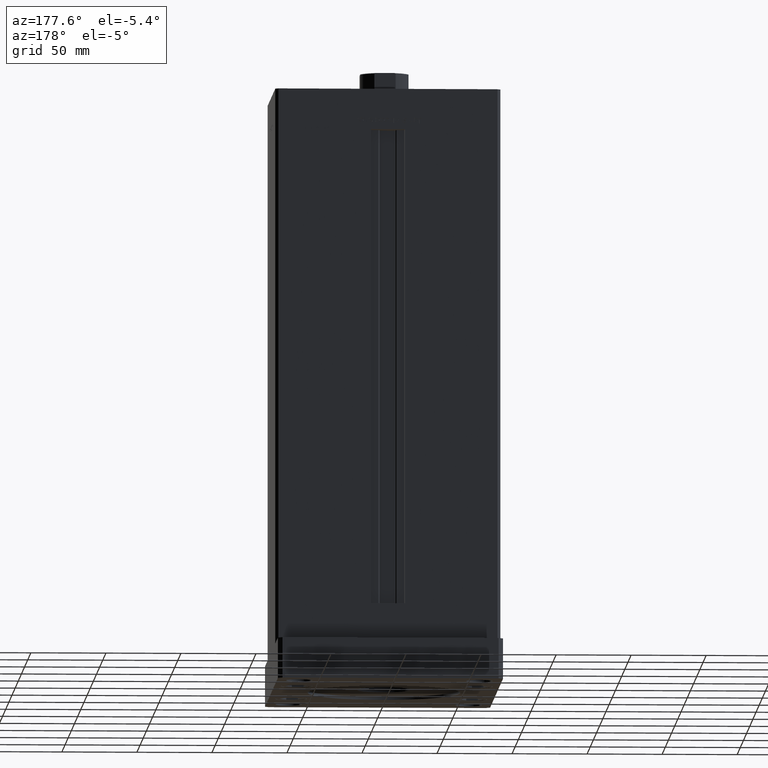
[diagram: clean part render]
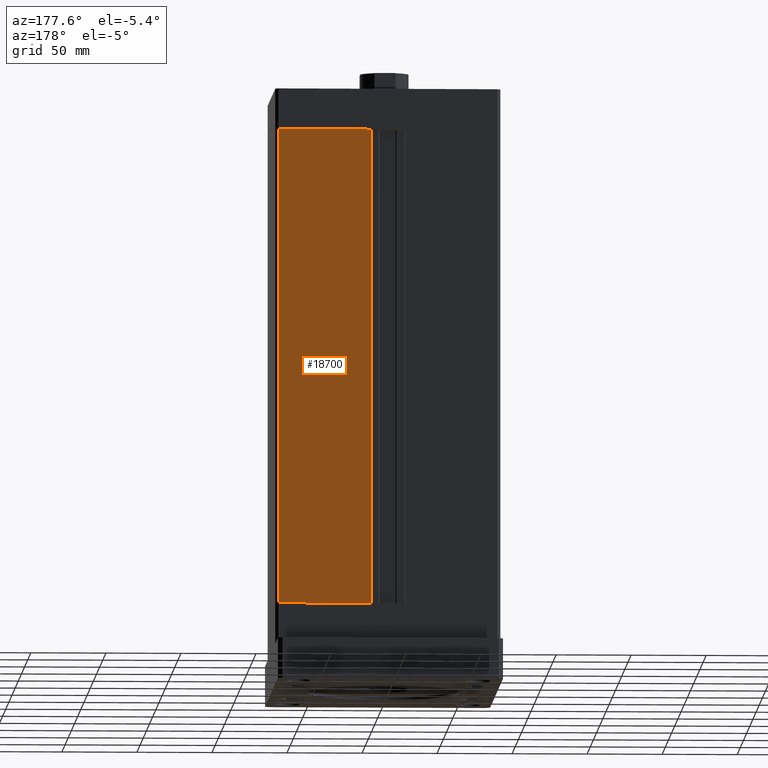
[diagram: same view with one face highlighted and labeled with its STEP entity id]
A machine part, auxiliary view. The second image highlights one B-rep face of the part: STEP entity #18700.
In plain terms, the highlighted planar face has unit normal (-0, -1, 0).
Its self-contained STEP definition (entity closure, byte-faithful):
#1520 = CARTESIAN_POINT ( 'NONE',  ( 11.25000000000000178, 62.49999999999999289, 0.000000000000000000 ) ) ;
#2417 = DIRECTION ( 'NONE',  ( -1.123707514802790025E-16, -1.000000000000000000, 0.000000000000000000 ) ) ;
#4047 = CARTESIAN_POINT ( 'NONE',  ( 73.00000000000001421, 62.50000000000000000, 317.0000000000000000 ) ) ;
#5135 = AXIS2_PLACEMENT_3D ( 'NONE', #39655, #2417, #10308 ) ;
#6636 = VECTOR ( 'NONE', #18113, 1000.000000000000000 ) ;
#8571 = EDGE_CURVE ( 'NONE', #24387, #19331, #51062, .T. ) ;
#9144 = VECTOR ( 'NONE', #13865, 1000.000000000000000 ) ;
#9185 = DIRECTION ( 'NONE',  ( -0.000000000000000000, -0.000000000000000000, -1.000000000000000000 ) ) ;
#9449 = CARTESIAN_POINT ( 'NONE',  ( 73.00000000000001421, 62.50000000000000000, 317.0000000000000000 ) ) ;
#10308 = DIRECTION ( 'NONE',  ( 1.000000000000000000, -1.123707514802790025E-16, 0.000000000000000000 ) ) ;
#10395 = CARTESIAN_POINT ( 'NONE',  ( 11.25000000000000178, 62.49999999999999289, 0.000000000000000000 ) ) ;
#11452 = LINE ( 'NONE', #32109, #14476 ) ;
#12191 = VECTOR ( 'NONE', #9185, 1000.000000000000000 ) ;
#13865 = DIRECTION ( 'NONE',  ( -1.000000000000000000, 1.123707514802790025E-16, 0.000000000000000000 ) ) ;
#14476 = VECTOR ( 'NONE', #19875, 1000.000000000000000 ) ;
#18113 = DIRECTION ( 'NONE',  ( -0.000000000000000000, -0.000000000000000000, 1.000000000000000000 ) ) ;
#18700 = ADVANCED_FACE ( 'NONE', ( #27438 ), #44002, .F. ) ;
#19331 = VERTEX_POINT ( 'NONE', #10395 ) ;
#19875 = DIRECTION ( 'NONE',  ( 1.000000000000000000, 0.000000000000000000, 0.000000000000000000 ) ) ;
#20997 = EDGE_CURVE ( 'NONE', #44656, #24387, #34718, .T. ) ;
#23067 = CARTESIAN_POINT ( 'NONE',  ( 11.24999999999999467, 62.49999999999999289, 317.0000000000000000 ) ) ;
#24387 = VERTEX_POINT ( 'NONE', #25919 ) ;
#25919 = CARTESIAN_POINT ( 'NONE',  ( 73.00000000000001421, 62.50000000000000000, 0.000000000000000000 ) ) ;
#27438 = FACE_OUTER_BOUND ( 'NONE', #51160, .T. ) ;
#30494 = EDGE_CURVE ( 'NONE', #38562, #44656, #11452, .T. ) ;
#30804 = EDGE_CURVE ( 'NONE', #19331, #38562, #39029, .T. ) ;
#31645 = ORIENTED_EDGE ( 'NONE', *, *, #20997, .T. ) ;
#32109 = CARTESIAN_POINT ( 'NONE',  ( -11.25000000000000178, 62.49999999999999289, 317.0000000000000000 ) ) ;
#34022 = ORIENTED_EDGE ( 'NONE', *, *, #30494, .T. ) ;
#34718 = LINE ( 'NONE', #9449, #12191 ) ;
#38562 = VERTEX_POINT ( 'NONE', #23067 ) ;
#39029 = LINE ( 'NONE', #1520, #6636 ) ;
#39655 = CARTESIAN_POINT ( 'NONE',  ( -11.25000000000000178, 62.49999999999999289, 317.0000000000000000 ) ) ;
#39761 = ORIENTED_EDGE ( 'NONE', *, *, #30804, .T. ) ;
#42657 = CARTESIAN_POINT ( 'NONE',  ( -11.25000000000000178, 62.49999999999999289, 0.000000000000000000 ) ) ;
#44002 = PLANE ( 'NONE',  #5135 ) ;
#44656 = VERTEX_POINT ( 'NONE', #4047 ) ;
#49954 = ORIENTED_EDGE ( 'NONE', *, *, #8571, .T. ) ;
#51062 = LINE ( 'NONE', #42657, #9144 ) ;
#51160 = EDGE_LOOP ( 'NONE', ( #49954, #39761, #34022, #31645 ) ) ;